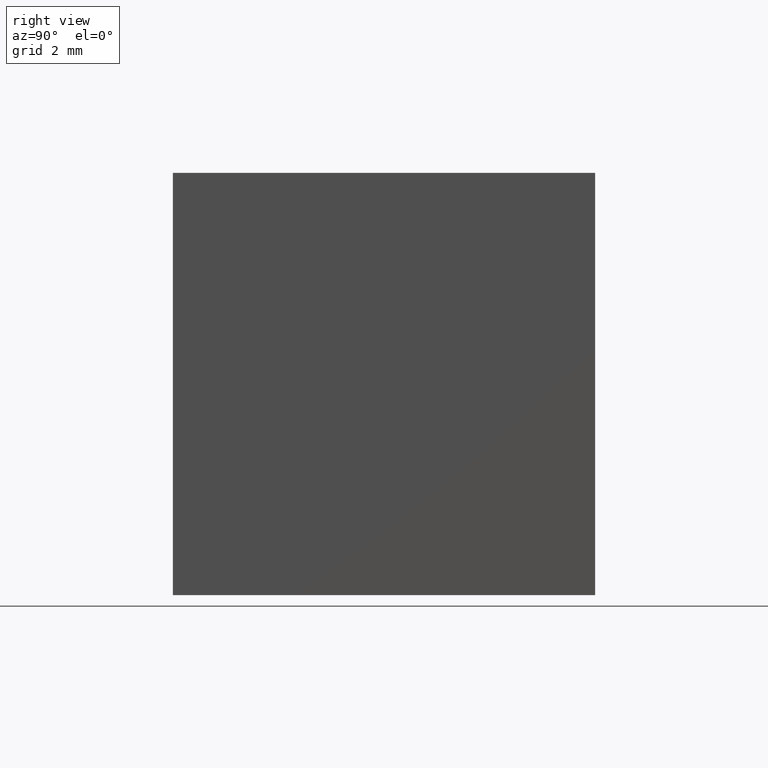
[diagram: clean part render]
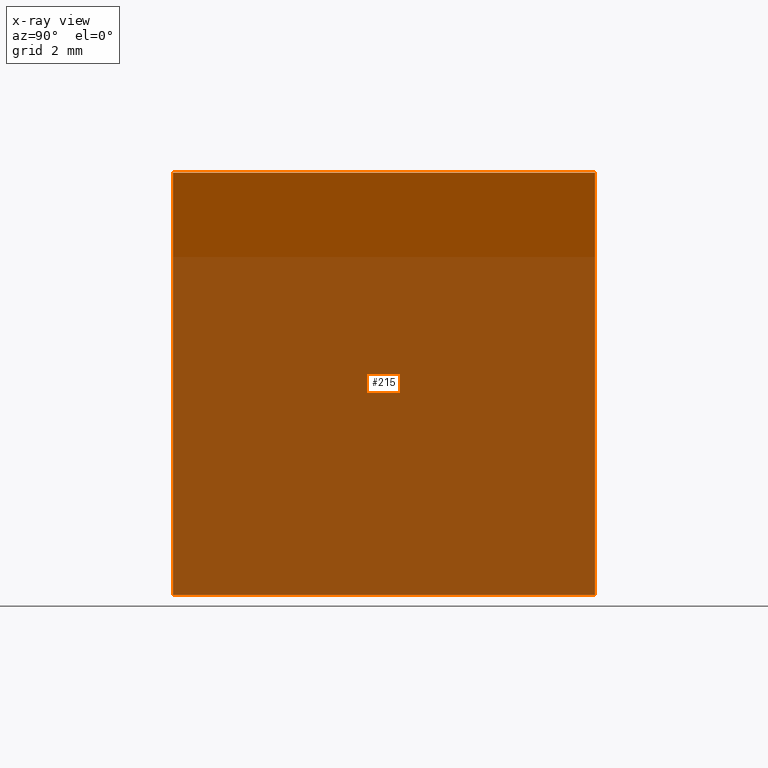
[diagram: x-ray — body ghosted, one internal face saturated and labeled with its STEP entity id]
A machine part, right view, then the same camera in x-ray: the body is ghosted and one INTERNAL B-rep face — a face not visible from any outside direction — is saturated and labeled: STEP entity #215.
In plain terms, the highlighted planar face has unit normal (0.7071, 0, -0.7071).
Its self-contained STEP definition (entity closure, byte-faithful):
#4 = VERTEX_POINT ( 'NONE', #48 ) ;
#6 = VECTOR ( 'NONE', #52, 1000.000000000000000 ) ;
#11 = CARTESIAN_POINT ( 'NONE',  ( 0.0000000000000000000, 12.50000000000000000, 0.0000000000000000000 ) ) ;
#29 = CARTESIAN_POINT ( 'NONE',  ( 0.0000000000000000000, 12.50000000000000000, 0.0000000000000000000 ) ) ;
#30 = FACE_OUTER_BOUND ( 'NONE', #43, .T. ) ;
#43 = EDGE_LOOP ( 'NONE', ( #137, #258, #279, #183 ) ) ;
#48 = CARTESIAN_POINT ( 'NONE',  ( -12.50000000000000000, 12.50000000000000000, -12.49999999999999800 ) ) ;
#52 = DIRECTION ( 'NONE',  ( 0.7071067811865475700, 0.0000000000000000000, 0.7071067811865474600 ) ) ;
#54 = DIRECTION ( 'NONE',  ( -0.0000000000000000000, -1.000000000000000000, -0.0000000000000000000 ) ) ;
#71 = LINE ( 'NONE', #226, #213 ) ;
#109 = CARTESIAN_POINT ( 'NONE',  ( -12.50000000000000000, 12.50000000000000000, -12.49999999999999800 ) ) ;
#123 = LINE ( 'NONE', #295, #6 ) ;
#125 = EDGE_CURVE ( 'NONE', #240, #220, #71, .T. ) ;
#127 = DIRECTION ( 'NONE',  ( 0.7071067811865474600, 0.0000000000000000000, -0.7071067811865476800 ) ) ;
#134 = VECTOR ( 'NONE', #160, 1000.000000000000000 ) ;
#137 = ORIENTED_EDGE ( 'NONE', *, *, #125, .T. ) ;
#142 = CARTESIAN_POINT ( 'NONE',  ( -12.50000000000000000, 0.0000000000000000000, -12.49999999999999800 ) ) ;
#160 = DIRECTION ( 'NONE',  ( -0.0000000000000000000, -1.000000000000000000, -0.0000000000000000000 ) ) ;
#166 = EDGE_CURVE ( 'NONE', #4, #300, #123, .T. ) ;
#175 = EDGE_CURVE ( 'NONE', #4, #240, #238, .T. ) ;
#183 = ORIENTED_EDGE ( 'NONE', *, *, #175, .T. ) ;
#184 = CARTESIAN_POINT ( 'NONE',  ( -12.50000000000000000, 12.50000000000000000, -12.49999999999999800 ) ) ;
#190 = EDGE_CURVE ( 'NONE', #300, #220, #249, .T. ) ;
#207 = VECTOR ( 'NONE', #54, 1000.000000000000000 ) ;
#213 = VECTOR ( 'NONE', #247, 1000.000000000000000 ) ;
#215 = ADVANCED_FACE ( 'NONE', ( #30 ), #259, .F. ) ;
#220 = VERTEX_POINT ( 'NONE', #230 ) ;
#226 = CARTESIAN_POINT ( 'NONE',  ( -12.50000000000000000, 0.0000000000000000000, -12.49999999999999800 ) ) ;
#230 = CARTESIAN_POINT ( 'NONE',  ( 0.0000000000000000000, 0.0000000000000000000, 0.0000000000000000000 ) ) ;
#238 = LINE ( 'NONE', #109, #134 ) ;
#240 = VERTEX_POINT ( 'NONE', #142 ) ;
#247 = DIRECTION ( 'NONE',  ( 0.7071067811865475700, 0.0000000000000000000, 0.7071067811865474600 ) ) ;
#249 = LINE ( 'NONE', #29, #207 ) ;
#258 = ORIENTED_EDGE ( 'NONE', *, *, #190, .F. ) ;
#259 = PLANE ( 'NONE',  #290 ) ;
#268 = DIRECTION ( 'NONE',  ( -0.7071067811865476800, 0.0000000000000000000, -0.7071067811865474600 ) ) ;
#279 = ORIENTED_EDGE ( 'NONE', *, *, #166, .F. ) ;
#290 = AXIS2_PLACEMENT_3D ( 'NONE', #184, #127, #268 ) ;
#295 = CARTESIAN_POINT ( 'NONE',  ( -12.50000000000000000, 12.50000000000000000, -12.49999999999999800 ) ) ;
#300 = VERTEX_POINT ( 'NONE', #11 ) ;